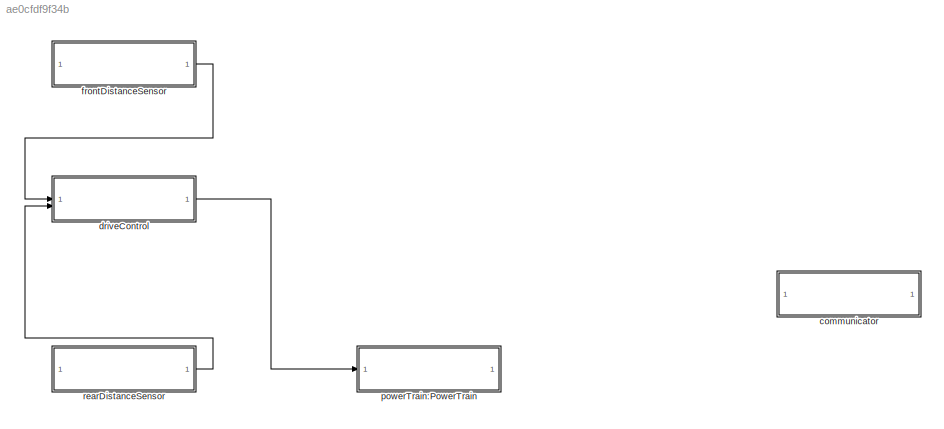
MODEL slx_ae0cfdf9f34b
KIND library
CONFIG AbsTol = auto
CONFIG EnableMultiTasking = off
CONFIG FixedStep = auto
CONFIG MaxStep = auto
CONFIG MinStep = auto
CONFIG RelTol = 1e-3
CONFIG SampleTimeConstraint = Unconstrained
CONFIG SolverName = VariableStepAuto
CONFIG StartTime = 0.0
CONFIG StopTime = 10.0
BLOCK [SubSystem] communicator
  ReferencedSubsystem = Coordinator
BLOCK [SubSystem] driveControl
  ReferencedSubsystem = DriveControl
BLOCK [SubSystem] frontDistanceSensor
  ReferencedSubsystem = DistanceSensor
BLOCK [SubSystem] powerTrain:PowerTrain
  ReferencedSubsystem = PowerTrain
BLOCK [SubSystem] rearDistanceSensor
  ReferencedSubsystem = DistanceSensor
LINE driveControl:1 -> powerTrain:PowerTrain:1
LINE frontDistanceSensor:1 -> driveControl:1
LINE rearDistanceSensor:1 -> driveControl:2
